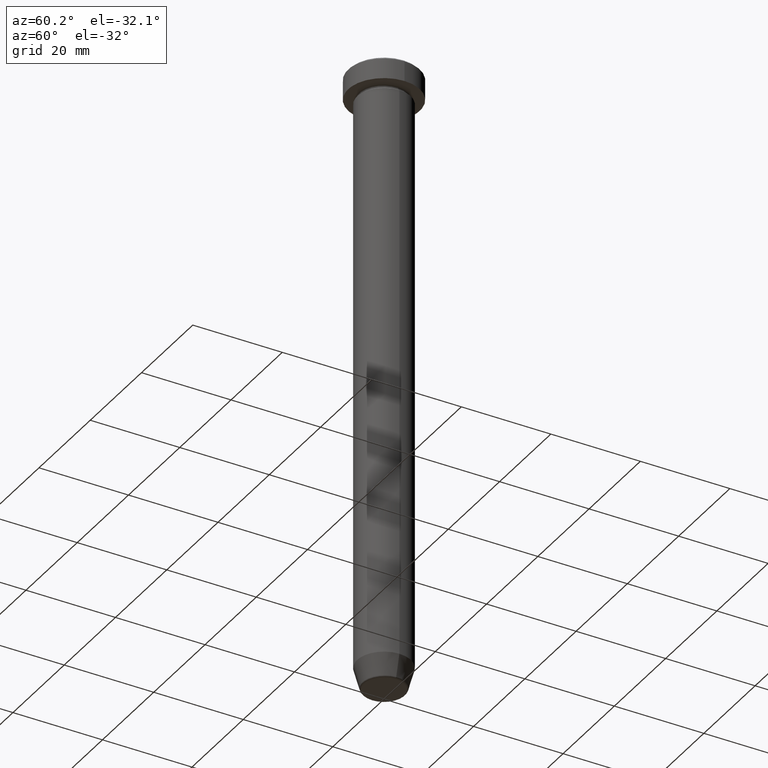
[diagram: clean part render]
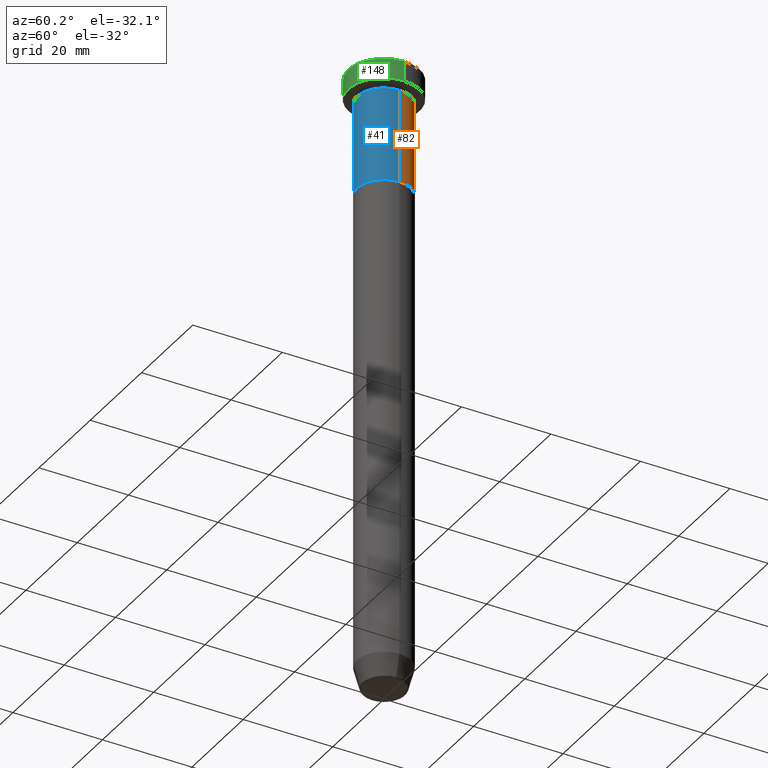
[diagram: same view with three faces highlighted in distinct colors, each labeled with its STEP entity id]
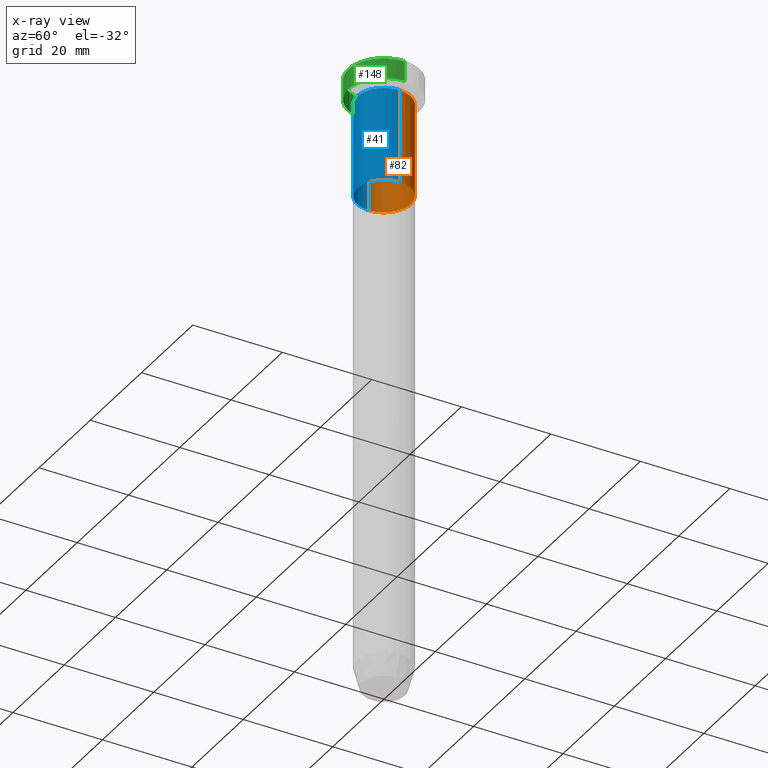
[diagram: x-ray of the same camera — body ghosted, the three highlighted faces saturated]
A machine part, auxiliary view with three faces highlighted in distinct colors.
The next image is the same camera in x-ray (body ghosted, the three faces saturated) — at least one of them is partly hidden behind the body in this view.
Their STEP definitions:

[orange] entity #82 — the highlighted cylindrical surface (edge-blend (fillet) strip) has radius 6 mm, axis along (-0, -0, 1).
#7 = DIRECTION ( 'NONE',  ( -0.000000000000000000, -0.000000000000000000, 1.000000000000000000 ) ) ;
#9 = VECTOR ( 'NONE', #465, 1000.000000000000000 ) ;
#30 = CYLINDRICAL_SURFACE ( 'NONE', #594, 6.000000000000000000 ) ;
#33 = CARTESIAN_POINT ( 'NONE',  ( -6.000000000000000000, 7.347880794884119736E-16, -27.00000000000000000 ) ) ;
#53 = VERTEX_POINT ( 'NONE', #402 ) ;
#64 = VERTEX_POINT ( 'NONE', #33 ) ;
#65 = CARTESIAN_POINT ( 'NONE',  ( 6.000000000000000000, 0.000000000000000000, -6.000000000000000000 ) ) ;
#82 = ADVANCED_FACE ( 'NONE', ( #526 ), #30, .T. ) ;
#104 = CIRCLE ( 'NONE', #273, 6.000000000000000000 ) ;
#137 = DIRECTION ( 'NONE',  ( 1.000000000000000000, 0.000000000000000000, 0.000000000000000000 ) ) ;
#164 = ORIENTED_EDGE ( 'NONE', *, *, #325, .T. ) ;
#179 = VERTEX_POINT ( 'NONE', #536 ) ;
#229 = DIRECTION ( 'NONE',  ( 1.000000000000000000, 0.000000000000000000, 0.000000000000000000 ) ) ;
#239 = EDGE_CURVE ( 'NONE', #397, #53, #104, .T. ) ;
#264 = CARTESIAN_POINT ( 'NONE',  ( 0.000000000000000000, 0.000000000000000000, 0.000000000000000000 ) ) ;
#272 = DIRECTION ( 'NONE',  ( -0.000000000000000000, -0.000000000000000000, 1.000000000000000000 ) ) ;
#273 = AXIS2_PLACEMENT_3D ( 'NONE', #366, #498, #423 ) ;
#281 = ORIENTED_EDGE ( 'NONE', *, *, #352, .T. ) ;
#297 = LINE ( 'NONE', #428, #452 ) ;
#322 = ORIENTED_EDGE ( 'NONE', *, *, #473, .F. ) ;
#324 = LINE ( 'NONE', #412, #9 ) ;
#325 = EDGE_CURVE ( 'NONE', #64, #53, #324, .T. ) ;
#346 = AXIS2_PLACEMENT_3D ( 'NONE', #416, #420, #137 ) ;
#352 = EDGE_CURVE ( 'NONE', #179, #64, #380, .T. ) ;
#358 = ORIENTED_EDGE ( 'NONE', *, *, #239, .F. ) ;
#366 = CARTESIAN_POINT ( 'NONE',  ( 0.000000000000000000, 0.000000000000000000, -6.000000000000000000 ) ) ;
#380 = CIRCLE ( 'NONE', #346, 6.000000000000000000 ) ;
#397 = VERTEX_POINT ( 'NONE', #65 ) ;
#402 = CARTESIAN_POINT ( 'NONE',  ( -6.000000000000000000, 7.347880794884119736E-16, -6.000000000000000000 ) ) ;
#412 = CARTESIAN_POINT ( 'NONE',  ( -6.000000000000000000, 7.347880794884119736E-16, 0.000000000000000000 ) ) ;
#416 = CARTESIAN_POINT ( 'NONE',  ( 0.000000000000000000, 0.000000000000000000, -27.00000000000000000 ) ) ;
#420 = DIRECTION ( 'NONE',  ( -0.000000000000000000, -0.000000000000000000, 1.000000000000000000 ) ) ;
#423 = DIRECTION ( 'NONE',  ( 1.000000000000000000, 0.000000000000000000, 0.000000000000000000 ) ) ;
#428 = CARTESIAN_POINT ( 'NONE',  ( 6.000000000000000000, 0.000000000000000000, 0.000000000000000000 ) ) ;
#452 = VECTOR ( 'NONE', #7, 1000.000000000000000 ) ;
#465 = DIRECTION ( 'NONE',  ( -0.000000000000000000, -0.000000000000000000, 1.000000000000000000 ) ) ;
#473 = EDGE_CURVE ( 'NONE', #179, #397, #297, .T. ) ;
#498 = DIRECTION ( 'NONE',  ( -0.000000000000000000, -0.000000000000000000, 1.000000000000000000 ) ) ;
#526 = FACE_OUTER_BOUND ( 'NONE', #540, .T. ) ;
#536 = CARTESIAN_POINT ( 'NONE',  ( 6.000000000000000000, 0.000000000000000000, -27.00000000000000000 ) ) ;
#540 = EDGE_LOOP ( 'NONE', ( #281, #164, #358, #322 ) ) ;
#594 = AXIS2_PLACEMENT_3D ( 'NONE', #264, #272, #229 ) ;

[blue] entity #41 — the highlighted cylindrical surface (edge-blend (fillet) strip) has radius 6 mm, axis along (-0, -0, 1).
#7 = DIRECTION ( 'NONE',  ( -0.000000000000000000, -0.000000000000000000, 1.000000000000000000 ) ) ;
#8 = DIRECTION ( 'NONE',  ( 1.000000000000000000, 0.000000000000000000, 0.000000000000000000 ) ) ;
#9 = VECTOR ( 'NONE', #465, 1000.000000000000000 ) ;
#33 = CARTESIAN_POINT ( 'NONE',  ( -6.000000000000000000, 7.347880794884119736E-16, -27.00000000000000000 ) ) ;
#41 = ADVANCED_FACE ( 'NONE', ( #343 ), #153, .T. ) ;
#44 = AXIS2_PLACEMENT_3D ( 'NONE', #335, #509, #8 ) ;
#53 = VERTEX_POINT ( 'NONE', #402 ) ;
#64 = VERTEX_POINT ( 'NONE', #33 ) ;
#65 = CARTESIAN_POINT ( 'NONE',  ( 6.000000000000000000, 0.000000000000000000, -6.000000000000000000 ) ) ;
#92 = DIRECTION ( 'NONE',  ( 1.000000000000000000, 0.000000000000000000, 0.000000000000000000 ) ) ;
#144 = AXIS2_PLACEMENT_3D ( 'NONE', #337, #377, #304 ) ;
#147 = ORIENTED_EDGE ( 'NONE', *, *, #405, .F. ) ;
#153 = CYLINDRICAL_SURFACE ( 'NONE', #44, 6.000000000000000000 ) ;
#174 = CIRCLE ( 'NONE', #144, 6.000000000000000000 ) ;
#179 = VERTEX_POINT ( 'NONE', #536 ) ;
#186 = CIRCLE ( 'NONE', #300, 6.000000000000000000 ) ;
#189 = CARTESIAN_POINT ( 'NONE',  ( 0.000000000000000000, 0.000000000000000000, -27.00000000000000000 ) ) ;
#297 = LINE ( 'NONE', #428, #452 ) ;
#300 = AXIS2_PLACEMENT_3D ( 'NONE', #189, #537, #92 ) ;
#304 = DIRECTION ( 'NONE',  ( 1.000000000000000000, 0.000000000000000000, 0.000000000000000000 ) ) ;
#324 = LINE ( 'NONE', #412, #9 ) ;
#325 = EDGE_CURVE ( 'NONE', #64, #53, #324, .T. ) ;
#335 = CARTESIAN_POINT ( 'NONE',  ( 0.000000000000000000, 0.000000000000000000, 0.000000000000000000 ) ) ;
#337 = CARTESIAN_POINT ( 'NONE',  ( 0.000000000000000000, 0.000000000000000000, -6.000000000000000000 ) ) ;
#343 = FACE_OUTER_BOUND ( 'NONE', #589, .T. ) ;
#344 = EDGE_CURVE ( 'NONE', #64, #179, #186, .T. ) ;
#377 = DIRECTION ( 'NONE',  ( -0.000000000000000000, -0.000000000000000000, 1.000000000000000000 ) ) ;
#397 = VERTEX_POINT ( 'NONE', #65 ) ;
#402 = CARTESIAN_POINT ( 'NONE',  ( -6.000000000000000000, 7.347880794884119736E-16, -6.000000000000000000 ) ) ;
#405 = EDGE_CURVE ( 'NONE', #53, #397, #174, .T. ) ;
#409 = ORIENTED_EDGE ( 'NONE', *, *, #473, .T. ) ;
#412 = CARTESIAN_POINT ( 'NONE',  ( -6.000000000000000000, 7.347880794884119736E-16, 0.000000000000000000 ) ) ;
#428 = CARTESIAN_POINT ( 'NONE',  ( 6.000000000000000000, 0.000000000000000000, 0.000000000000000000 ) ) ;
#452 = VECTOR ( 'NONE', #7, 1000.000000000000000 ) ;
#465 = DIRECTION ( 'NONE',  ( -0.000000000000000000, -0.000000000000000000, 1.000000000000000000 ) ) ;
#466 = ORIENTED_EDGE ( 'NONE', *, *, #344, .T. ) ;
#473 = EDGE_CURVE ( 'NONE', #179, #397, #297, .T. ) ;
#509 = DIRECTION ( 'NONE',  ( -0.000000000000000000, -0.000000000000000000, 1.000000000000000000 ) ) ;
#536 = CARTESIAN_POINT ( 'NONE',  ( 6.000000000000000000, 0.000000000000000000, -27.00000000000000000 ) ) ;
#537 = DIRECTION ( 'NONE',  ( -0.000000000000000000, -0.000000000000000000, 1.000000000000000000 ) ) ;
#583 = ORIENTED_EDGE ( 'NONE', *, *, #325, .F. ) ;
#589 = EDGE_LOOP ( 'NONE', ( #583, #466, #409, #147 ) ) ;

[green] entity #148 — the highlighted cylindrical surface (partial cylindrical patch) has radius 8 mm, axis along (-0, -0, 1).
#18 = AXIS2_PLACEMENT_3D ( 'NONE', #178, #184, #130 ) ;
#19 = CARTESIAN_POINT ( 'NONE',  ( -8.000000000000000000, 9.797174393178825657E-16, -0.5000000000000038858 ) ) ;
#24 = DIRECTION ( 'NONE',  ( 0.000000000000000000, 0.000000000000000000, -1.000000000000000000 ) ) ;
#67 = ORIENTED_EDGE ( 'NONE', *, *, #291, .T. ) ;
#130 = DIRECTION ( 'NONE',  ( 1.000000000000000000, 0.000000000000000000, 0.000000000000000000 ) ) ;
#134 = FACE_OUTER_BOUND ( 'NONE', #249, .T. ) ;
#148 = ADVANCED_FACE ( 'NONE', ( #134 ), #522, .T. ) ;
#151 = CARTESIAN_POINT ( 'NONE',  ( 8.000000000000000000, 0.000000000000000000, -5.000000000000000000 ) ) ;
#158 = ORIENTED_EDGE ( 'NONE', *, *, #533, .T. ) ;
#162 = CARTESIAN_POINT ( 'NONE',  ( -8.000000000000000000, 9.797174393178825657E-16, -5.000000000000000000 ) ) ;
#163 = AXIS2_PLACEMENT_3D ( 'NONE', #331, #593, #599 ) ;
#166 = EDGE_CURVE ( 'NONE', #512, #517, #363, .T. ) ;
#172 = DIRECTION ( 'NONE',  ( -0.000000000000000000, -0.000000000000000000, 1.000000000000000000 ) ) ;
#178 = CARTESIAN_POINT ( 'NONE',  ( 0.000000000000000000, 0.000000000000000000, 0.000000000000000000 ) ) ;
#183 = CARTESIAN_POINT ( 'NONE',  ( 8.000000000000000000, 0.000000000000000000, 0.000000000000000000 ) ) ;
#184 = DIRECTION ( 'NONE',  ( -0.000000000000000000, -0.000000000000000000, 1.000000000000000000 ) ) ;
#190 = ORIENTED_EDGE ( 'NONE', *, *, #166, .F. ) ;
#196 = CARTESIAN_POINT ( 'NONE',  ( 8.000000000000000000, 0.000000000000000000, -0.5000000000000038858 ) ) ;
#203 = VERTEX_POINT ( 'NONE', #196 ) ;
#220 = LINE ( 'NONE', #183, #392 ) ;
#241 = CIRCLE ( 'NONE', #289, 8.000000000000000000 ) ;
#249 = EDGE_LOOP ( 'NONE', ( #190, #67, #158, #307 ) ) ;
#289 = AXIS2_PLACEMENT_3D ( 'NONE', #578, #24, #306 ) ;
#291 = EDGE_CURVE ( 'NONE', #512, #378, #421, .T. ) ;
#306 = DIRECTION ( 'NONE',  ( 1.000000000000000000, 0.000000000000000000, 0.000000000000000000 ) ) ;
#307 = ORIENTED_EDGE ( 'NONE', *, *, #550, .T. ) ;
#319 = DIRECTION ( 'NONE',  ( -0.000000000000000000, -0.000000000000000000, 1.000000000000000000 ) ) ;
#331 = CARTESIAN_POINT ( 'NONE',  ( 0.000000000000000000, 0.000000000000000000, -5.000000000000000000 ) ) ;
#363 = LINE ( 'NONE', #399, #419 ) ;
#378 = VERTEX_POINT ( 'NONE', #151 ) ;
#392 = VECTOR ( 'NONE', #172, 1000.000000000000000 ) ;
#399 = CARTESIAN_POINT ( 'NONE',  ( -8.000000000000000000, 9.797174393178825657E-16, 0.000000000000000000 ) ) ;
#419 = VECTOR ( 'NONE', #319, 1000.000000000000000 ) ;
#421 = CIRCLE ( 'NONE', #163, 8.000000000000000000 ) ;
#512 = VERTEX_POINT ( 'NONE', #162 ) ;
#517 = VERTEX_POINT ( 'NONE', #19 ) ;
#522 = CYLINDRICAL_SURFACE ( 'NONE', #18, 8.000000000000000000 ) ;
#533 = EDGE_CURVE ( 'NONE', #378, #203, #220, .T. ) ;
#550 = EDGE_CURVE ( 'NONE', #203, #517, #241, .T. ) ;
#578 = CARTESIAN_POINT ( 'NONE',  ( 0.000000000000000000, 0.000000000000000000, -0.5000000000000038858 ) ) ;
#593 = DIRECTION ( 'NONE',  ( -0.000000000000000000, -0.000000000000000000, 1.000000000000000000 ) ) ;
#599 = DIRECTION ( 'NONE',  ( 1.000000000000000000, 0.000000000000000000, 0.000000000000000000 ) ) ;